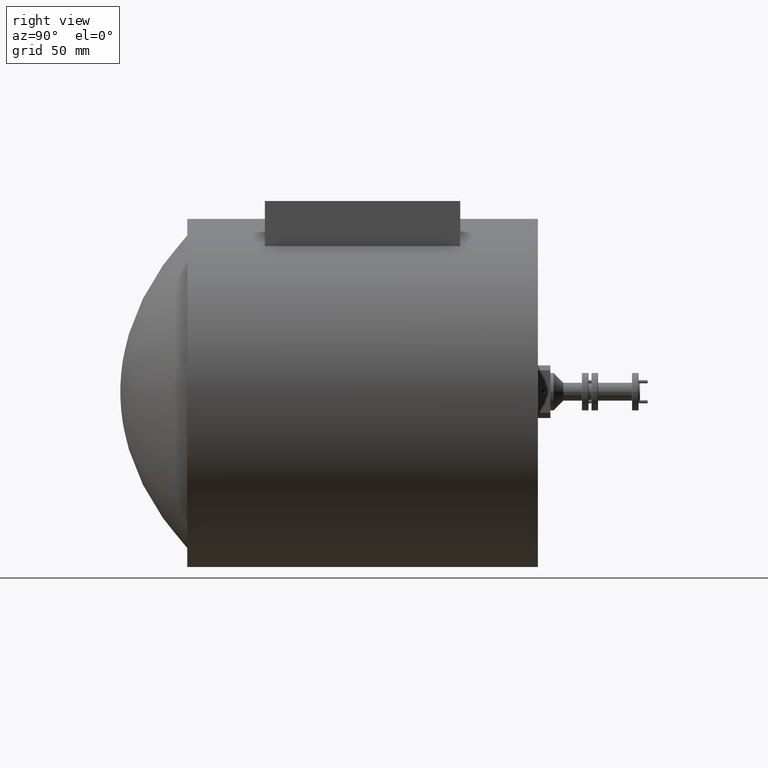
[diagram: clean part render]
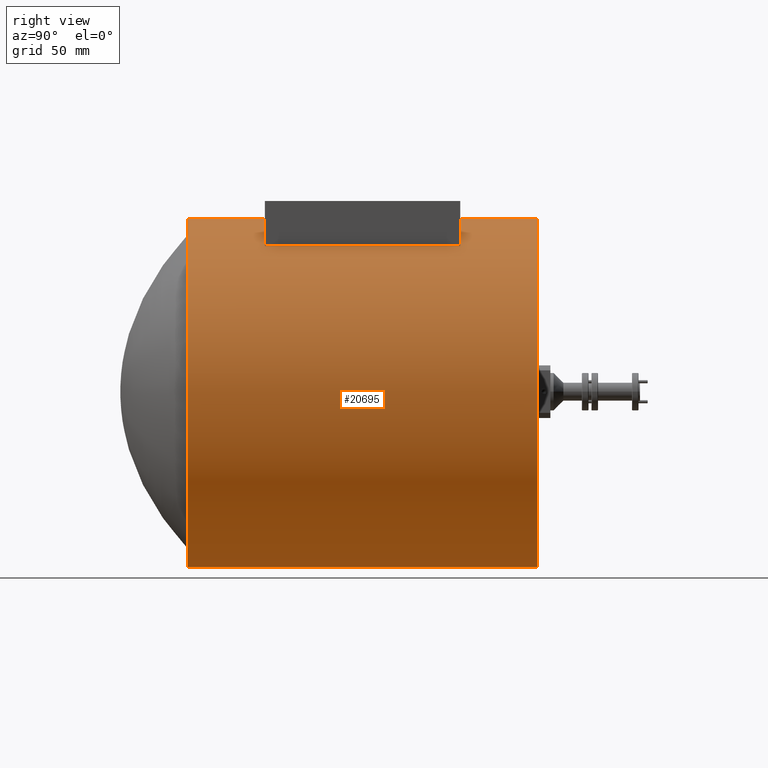
[diagram: same view with one face highlighted and labeled with its STEP entity id]
A machine part, right view. The second image highlights one B-rep face of the part: STEP entity #20695.
In plain terms, the highlighted cylindrical surface (partial cylindrical patch) has radius 88.9 mm, axis along (-0, -1, -0).
Its self-contained STEP definition (entity closure, byte-faithful):
#1865 = CARTESIAN_POINT ( 'NONE',  ( -1.570761672972037504, 4.544377155374181854, -2.701279657766491482 ) ) ;
#3478 = CARTESIAN_POINT ( 'NONE',  ( -0.9812703668444591187, 4.544377155374181854, 4.248720342233508696 ) ) ;
#7049 = DIRECTION ( 'NONE',  ( 0.0000000000000000000, 0.0000000000000000000, 1.000000000000000000 ) ) ;
#9563 = FACE_OUTER_BOUND ( 'NONE', #13828, .T. ) ;
#10717 = VERTEX_POINT ( 'NONE', #18422 ) ;
#11706 = EDGE_CURVE ( 'NONE', #10717, #31378, #38093, .T. ) ;
#13828 = EDGE_LOOP ( 'NONE', ( #19962, #34175, #15568, #17204 ) ) ;
#15568 = ORIENTED_EDGE ( 'NONE', *, *, #11706, .T. ) ;
#16718 = DIRECTION ( 'NONE',  ( 0.0000000000000000000, 1.000000000000000000, 0.0000000000000000000 ) ) ;
#16892 = VECTOR ( 'NONE', #28068, 39.37007874015748143 ) ;
#17204 = ORIENTED_EDGE ( 'NONE', *, *, #41169, .T. ) ;
#17534 = DIRECTION ( 'NONE',  ( 0.0000000000000000000, 0.0000000000000000000, 1.000000000000000000 ) ) ;
#18422 = CARTESIAN_POINT ( 'NONE',  ( -0.9812703668444591187, 4.544377155374181854, 4.248720342233508696 ) ) ;
#18664 = CIRCLE ( 'NONE', #25818, 3.500000000000000000 ) ;
#19962 = ORIENTED_EDGE ( 'NONE', *, *, #39023, .F. ) ;
#20018 = CARTESIAN_POINT ( 'NONE',  ( -1.570761672972037504, -2.455622844625818146, -2.701279657766491482 ) ) ;
#20695 = ADVANCED_FACE ( 'NONE', ( #9563 ), #22532, .T. ) ;
#21139 = EDGE_CURVE ( 'NONE', #10717, #22994, #35510, .T. ) ;
#21393 = LINE ( 'NONE', #25189, #39986 ) ;
#22532 = CYLINDRICAL_SURFACE ( 'NONE', #43332, 3.500000000000000000 ) ;
#22994 = VERTEX_POINT ( 'NONE', #1865 ) ;
#23194 = CARTESIAN_POINT ( 'NONE',  ( -1.570761672972037504, 4.544377155374181854, 0.7987203422335082958 ) ) ;
#23806 = CARTESIAN_POINT ( 'NONE',  ( -1.570761672972037504, 4.544377155374181854, 0.7987203422335082958 ) ) ;
#25189 = CARTESIAN_POINT ( 'NONE',  ( -1.570761672972037504, 4.544377155374181854, -2.701279657766491482 ) ) ;
#25818 = AXIS2_PLACEMENT_3D ( 'NONE', #31403, #16718, #17534 ) ;
#28068 = DIRECTION ( 'NONE',  ( -0.0000000000000000000, -1.000000000000000000, -0.0000000000000000000 ) ) ;
#30145 = DIRECTION ( 'NONE',  ( -0.0000000000000000000, -1.000000000000000000, -0.0000000000000000000 ) ) ;
#31314 = CARTESIAN_POINT ( 'NONE',  ( -0.9812703668444591187, -2.455622844625818146, 4.248720342233508696 ) ) ;
#31378 = VERTEX_POINT ( 'NONE', #31314 ) ;
#31403 = CARTESIAN_POINT ( 'NONE',  ( -1.570761672972037504, -2.455622844625818146, 0.7987203422335082958 ) ) ;
#34175 = ORIENTED_EDGE ( 'NONE', *, *, #21139, .F. ) ;
#35510 = CIRCLE ( 'NONE', #39077, 3.500000000000000000 ) ;
#38093 = LINE ( 'NONE', #3478, #16892 ) ;
#39023 = EDGE_CURVE ( 'NONE', #22994, #43042, #21393, .T. ) ;
#39077 = AXIS2_PLACEMENT_3D ( 'NONE', #23806, #43730, #7049 ) ;
#39986 = VECTOR ( 'NONE', #41735, 39.37007874015748143 ) ;
#41169 = EDGE_CURVE ( 'NONE', #31378, #43042, #18664, .T. ) ;
#41735 = DIRECTION ( 'NONE',  ( -0.0000000000000000000, -1.000000000000000000, -0.0000000000000000000 ) ) ;
#43042 = VERTEX_POINT ( 'NONE', #20018 ) ;
#43332 = AXIS2_PLACEMENT_3D ( 'NONE', #23194, #30145, #43774 ) ;
#43730 = DIRECTION ( 'NONE',  ( 0.0000000000000000000, 1.000000000000000000, 0.0000000000000000000 ) ) ;
#43774 = DIRECTION ( 'NONE',  ( 0.0000000000000000000, 0.0000000000000000000, -1.000000000000000000 ) ) ;